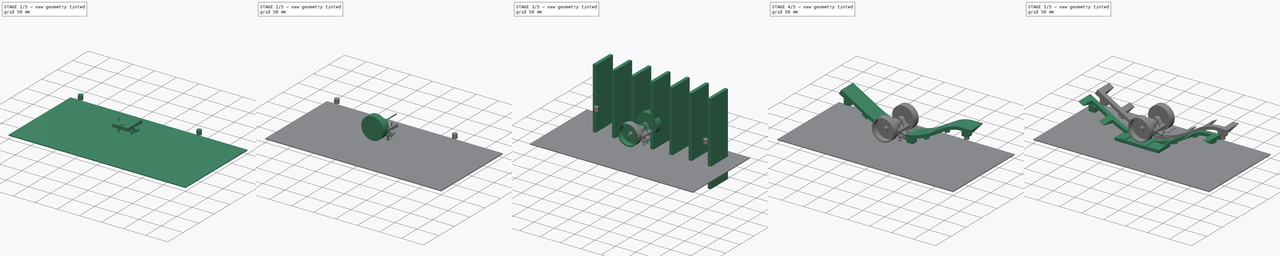
[diagram: build sequence overview — one tinted view per stage of 5, left to right]
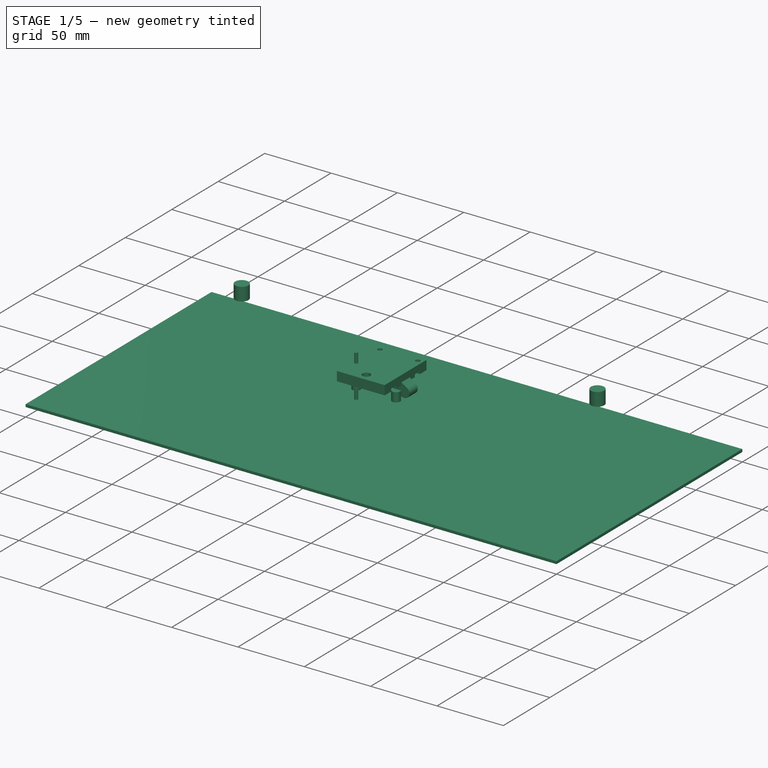
[diagram: stage 1 of 5 — iso view after this stage's code; geometry added in this stage tinted green]
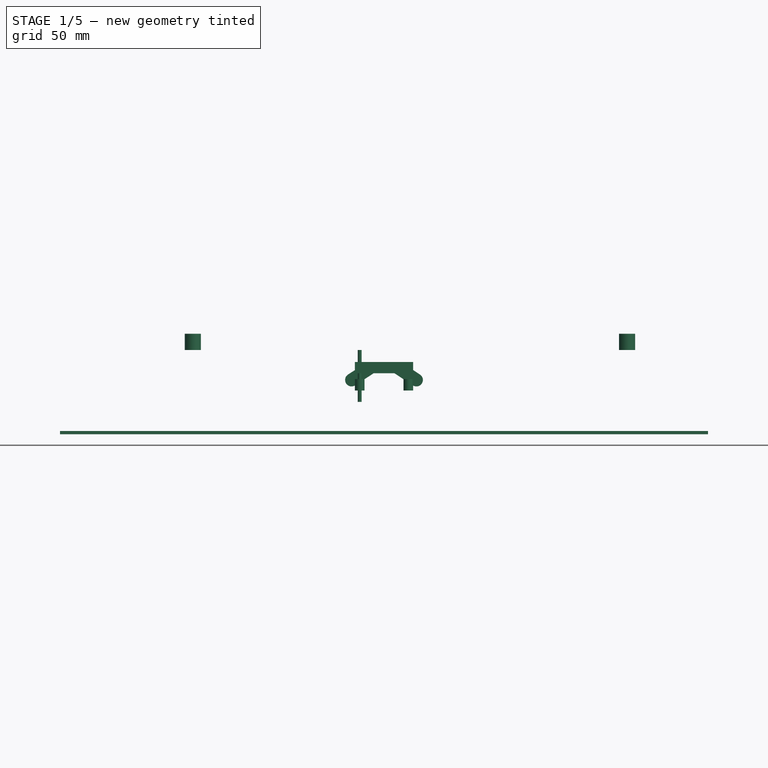
[diagram: stage 1 of 5 — front view after this stage's code; geometry added in this stage tinted green]
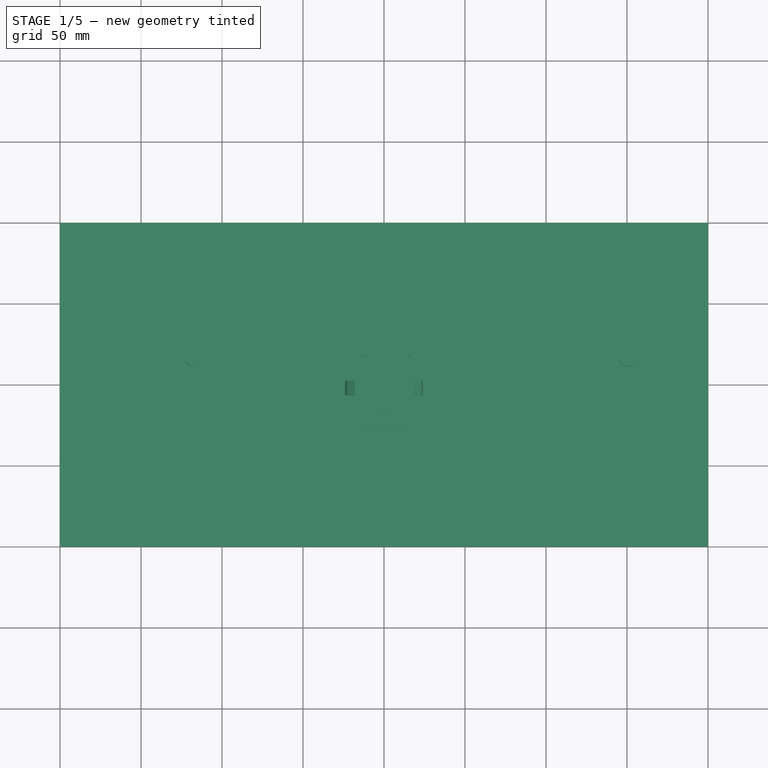
[diagram: stage 1 of 5 — top view after this stage's code; geometry added in this stage tinted green]
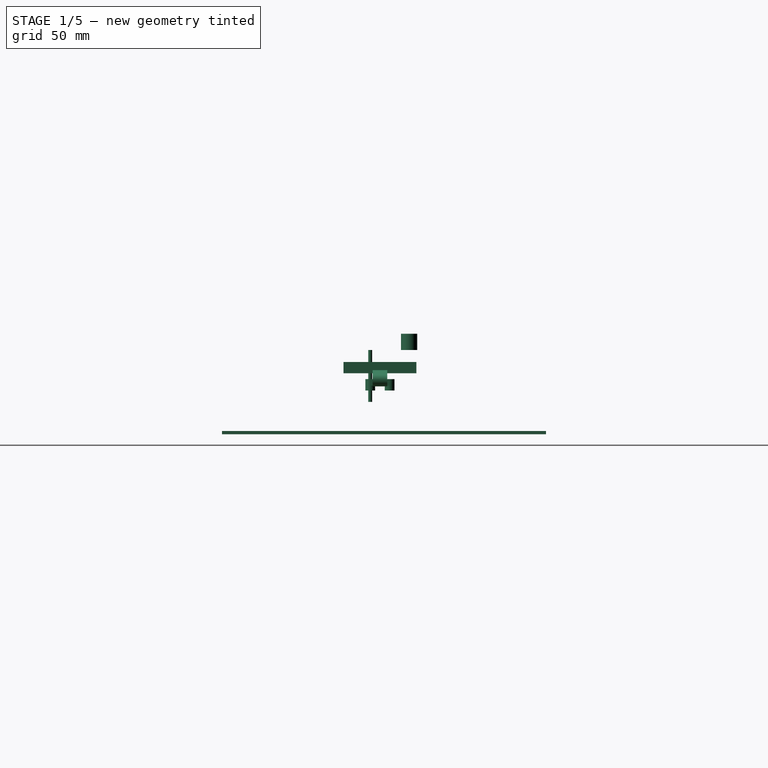
[diagram: stage 1 of 5 — right view after this stage's code; geometry added in this stage tinted green]
FCSTD DOCUMENT  (FreeCAD 0.16R6706 (Git))
Label: mountcar
License: All rights reserved
LicenseURL: http://en.wikipedia.org/wiki/All_rights_reserved
objects: Sketcher::SketchObject×26, Part::FeaturePython×18, Part::Box×15, PartDesign::Pad×13, Part::Cut×12, Part::Cylinder×10, PartDesign::Pocket×7, Part::MultiFuse×5, Part::Compound×3, Part::Sweep×3, Part::Thickness×2, Part::Mirroring×2, Part::Extrusion×1, Part::MultiCommon×1
note: 138 computed .brp shape members not serialized (recipe doc carries the construction recipe); baked Part::Feature solids carry a one-line shape summary decoded from their .brp

FEATURE [Part::Box] Box  label="chassis"
  Height = 5
  Length = 36
  Placement = pos=(-18,-25,-12.4) rot=(0,0,1;0rad)
  Width = 45
FEATURE [Part::Cylinder] Cylinder006  label="rod"
  Angle = 360
  Height = 32
  Radius = 1.2
FEATURE [Part::FeaturePython] Clone014  label="Clone of rod003"  # Draft clone (typed FeaturePython)
  Objects = -> [Cylinder006]
  Placement = pos=(-15,-8.5,-32) rot=(0,0,1;0rad)
  Scale = (1,1,1)
FEATURE [Sketcher::SketchObject] Sketch022
  Placement = pos=(-18,-25,-22) rot=(1,0,0;3.14159rad)
  sketch-geometry (4):
    g0: Circle CenterX=3 CenterY=-16.5 CenterZ=0 NormalX=0 NormalY=0 NormalZ=1 Radius=3
    g1: Circle CenterX=33 CenterY=-28.5 CenterZ=0 NormalX=0 NormalY=0 NormalZ=1 Radius=3
    g2: Circle CenterX=33 CenterY=-16.5 CenterZ=0 NormalX=0 NormalY=0 NormalZ=1 Radius=3
    g3: Circle CenterX=3 CenterY=-28.5 CenterZ=0 NormalX=0 NormalY=0 NormalZ=1 Radius=3
  constraints (12):
    c: DistanceX(g0) = 3
    c: DistanceY(g0) = -16.5
    c: Radius(g0) = 3
    c: DistanceX(g1) = 33
    c: DistanceY(g1) = -28.5
    c: Equal(g0,g3)
    c: Equal(g3,g1)
    c: Equal(g1,g2)
    c: DistanceX(g3) = 3
    c: DistanceY(g3) = -28.5
    c: DistanceX(g2) = 33
    c: DistanceY(g2) = -16.5
FEATURE [PartDesign::Pad] Pad018
  Length = 3
  Length2 = 100
  Placement = pos=(-18,-25,-22) rot=(1,0,0;3.14159rad)
  Sketch = -> Sketch022
  Type = 0
FEATURE [Sketcher::SketchObject] Sketch023
  Placement = pos=(0,2,0) rot=(1,0,0;1.5708rad)
  sketch-geometry (8):
    g0: LineSegment StartX=-18 StartY=-12.4 StartZ=0 EndX=-22.1963 EndY=-15.1569 EndZ=0
    g1: LineSegment StartX=-17.8037 StartY=-21.8431 StartZ=0 EndX=-3.43033 EndY=-12.4 EndZ=0
    g2: LineSegment StartX=-3.43033 StartY=-12.4 StartZ=0 EndX=-18 EndY=-12.4 EndZ=0
    g3: ArcOfCircle CenterX=-20 CenterY=-18.5 CenterZ=0 NormalX=0 NormalY=0 NormalZ=1 Radius=4 StartAngle=2.15206 EndAngle=5.29365
    g4: LineSegment StartX=18 StartY=-12.4 StartZ=0 EndX=22.1963 EndY=-15.1569 EndZ=0
    g5: LineSegment StartX=17.8037 StartY=-21.8431 StartZ=0 EndX=3.43033 EndY=-12.4 EndZ=0
    g6: LineSegment StartX=3.43033 StartY=-12.4 StartZ=0 EndX=18 EndY=-12.4 EndZ=0
    g7: ArcOfCircle CenterX=20 CenterY=-18.5 CenterZ=0 NormalX=0 NormalY=0 NormalZ=1 Radius=4 StartAngle=4.13112 EndAngle=7.27271
  constraints (24):
    c: Coincident(g1,g2)
    c: Horizontal(g2)
    c: DistanceX(g3) = -20
    c: DistanceY(g3) = -18.5
    c: Coincident(g3,g0)
    c: Coincident(g3,g1)
    c: Radius(g3) = 4
    c: Tangent(g0,g3)
    c: Tangent(g1,g3)
    c: DistanceX(g0) = -18
    c: DistanceY(g0) = -12.4
    c: Coincident(g2,g0)
    c: Parallel(g1,g0)
    c: Coincident(g5,g6)
    c: Horizontal(g6)
    c: Coincident(g7,g4)
    c: Coincident(g7,g5)
    c: Radius(g7) = 4
    c: Tangent(g4,g7)
    c: Tangent(g5,g7)
    c: Coincident(g6,g4)
    c: Parallel(g5,g4)
    c: Symmetric(g5,g1,g-2)
    c: Symmetric(g5,g1,g-2)
FEATURE [PartDesign::Pad] Pad019
  Length = 9
  Length2 = 100
  Placement = pos=(0,2,0) rot=(1,0,0;1.5708rad)
  Sketch = -> Sketch023
  Type = 0
FEATURE [Sketcher::SketchObject] Sketch024
  Placement = pos=(-18,-25,-18) rot=(1,0,0;3.14159rad)
  sketch-geometry (8):
    g0: LineSegment StartX=0 StartY=-16.5 StartZ=0 EndX=0 EndY=-28.5 EndZ=0
    g1: LineSegment StartX=6 StartY=-16.5 StartZ=0 EndX=6 EndY=-28.5 EndZ=0
    g2: LineSegment StartX=30 StartY=-16.5 StartZ=0 EndX=30 EndY=-28.5 EndZ=0
    g3: LineSegment StartX=36 StartY=-16.5 StartZ=0 EndX=36 EndY=-28.5 EndZ=0
    g4: ArcOfCircle CenterX=3 CenterY=-16.5 CenterZ=0 NormalX=0 NormalY=0 NormalZ=1 Radius=3 StartAngle=3.868e-09 EndAngle=3.14159
    g5: ArcOfCircle CenterX=3 CenterY=-28.5 CenterZ=0 NormalX=0 NormalY=0 NormalZ=1 Radius=3 StartAngle=3.14159 EndAngle=6.28319
    g6: ArcOfCircle CenterX=33 CenterY=-16.5 CenterZ=0 NormalX=0 NormalY=0 NormalZ=1 Radius=3 StartAngle=6.28319 EndAngle=9.42478
    g7: ArcOfCircle CenterX=33 CenterY=-28.5 CenterZ=0 NormalX=0 NormalY=0 NormalZ=1 Radius=3 StartAngle=3.14159 EndAngle=6.28319
  constraints (28):
    c: Vertical(g0)
    c: Vertical(g1)
    c: Vertical(g2)
    c: Vertical(g3)
    c: Coincident(g4,g0)
    c: Coincident(g4,g1)
    c: Coincident(g5,g0)
    c: Coincident(g5,g1)
    c: Coincident(g6,g2)
    c: Coincident(g6,g3)
    c: Coincident(g7,g2)
    c: Coincident(g7,g3)
    c: DistanceX(g4) = 3
    c: DistanceY(g4) = -16.5
    c: DistanceX(g6) = 33
    c: DistanceY(g6) = -16.5
    c: DistanceX(g7) = 33
    c: DistanceY(g7) = -28.5
    c: DistanceX(g5) = 3
    c: DistanceY(g5) = -28.5
    c: Radius(g4) = 3
    c: Equal(g6,g7)
    c: Equal(g7,g5)
    c: Equal(g5,g4)
    c: Tangent(g1,g4)
    c: Tangent(g2,g6)
    c: Tangent(g0,g4)
    c: Tangent(g3,g7)
FEATURE [PartDesign::Pad] Pad020
  Length = 4
  Length2 = 100
  Placement = pos=(-18,-25,-18) rot=(1,0,0;3.14159rad)
  Sketch = -> Sketch024
  Type = 0
FEATURE [Part::Box] Box002  label="chassis001"
  Height = 2
  Length = 36
  Placement = pos=(-18,-12.5,-14.4) rot=(0,0,1;0rad)
  Width = 20
FEATURE [Part::Box] Box003  label="chassis002"
  Height = 2
  Length = 18
  Placement = pos=(-9,-25,-14.4) rot=(0,0,1;0rad)
  Width = 45
FEATURE [Part::Box] Box004  label="chassis003"
  Height = 2
  Length = 36
  Placement = pos=(-18,13,-14.4) rot=(0,0,1;0rad)
  Width = 7
FEATURE [Part::Box] Box005  label="chassis004"
  Height = 2
  Length = 36
  Placement = pos=(-18,-25,-14.4) rot=(0,0,1;0rad)
  Width = 7
FEATURE [Sketcher::SketchObject] Sketch025
  Placement = pos=(0,0,-50) rot=(0,0,1;0rad)
  sketch-geometry (3):
    g0: Circle CenterX=0 CenterY=-19 CenterZ=0 NormalX=0 NormalY=0 NormalZ=1 Radius=1.7
    g1: Circle CenterX=-14.3 CenterY=16 CenterZ=0 NormalX=0 NormalY=0 NormalZ=1 Radius=1.7
    g2: Circle CenterX=14.3 CenterY=16 CenterZ=0 NormalX=0 NormalY=0 NormalZ=1 Radius=1.7
  constraints (8):
    c: PointOnObject(g0,g-2)
    c: Radius(g0) = 1.7
    c: DistanceX(g1) = -14.3
    c: Symmetric(g1,g2,g-2)
    c: Equal(g1,g2)
    c: Equal(g2,g0)
    c: DistanceY(g1) = 16
    c: DistanceY(g0) = -19
FEATURE [Part::MultiFuse] Fusion002
  Shapes = -> [Box002,Box004,Box003,Box005]
FEATURE [PartDesign::Pad] Pad021
  Length = 100
  Length2 = 100
  Placement = pos=(0,0,-50) rot=(0,0,1;0rad)
  Sketch = -> Sketch025
  Type = 0
FEATURE [Part::Cut] Cut005
  Base = -> Fusion002
  Tool = -> Pad021
FEATURE [Part::Cut] Cut006
  Base = -> Box
  Tool = -> Pad021
FEATURE [Sketcher::SketchObject] Sketch026
  Placement = pos=(0,0,-7.4) rot=(0,0,1;0rad)
  Support = -> Cut006 [Face3]
  sketch-geometry (1):
    g0: Circle CenterX=0 CenterY=-19 CenterZ=0 NormalX=0 NormalY=0 NormalZ=1 Radius=3
  constraints (3):
    c: PointOnObject(g0,g-2)
    c: Radius(g0) = 3
    c: DistanceY(g0) = -19
FEATURE [PartDesign::Pocket] Pocket002
  Length = 3
  Sketch = -> Sketch026
  Type = 0
FEATURE [Part::Cylinder] Cylinder008  label="Cylinder"
  Angle = 360
  Height = 10
  Placement = pos=(150.032,15.5155,0) rot=(0,0,1;0rad)
  Radius = 5
FEATURE [Part::Cylinder] Cylinder009  label="Cylinder001"
  Angle = 360
  Height = 10
  Placement = pos=(-118.004,15.4796,0) rot=(0,0,1;0rad)
  Radius = 5
FEATURE [Part::Box] Box015  label="Cube"
  Height = 2
  Length = 400
  Placement = pos=(-200,-100,-52) rot=(0,0,1;0rad)
  Width = 200
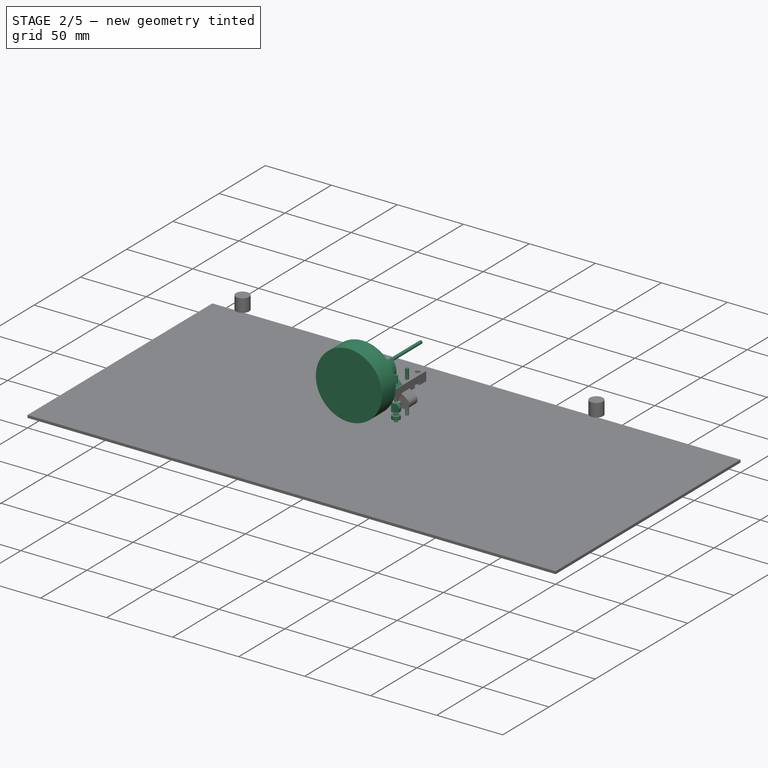
[diagram: stage 2 of 5 — iso view after this stage's code; geometry added in this stage tinted green]
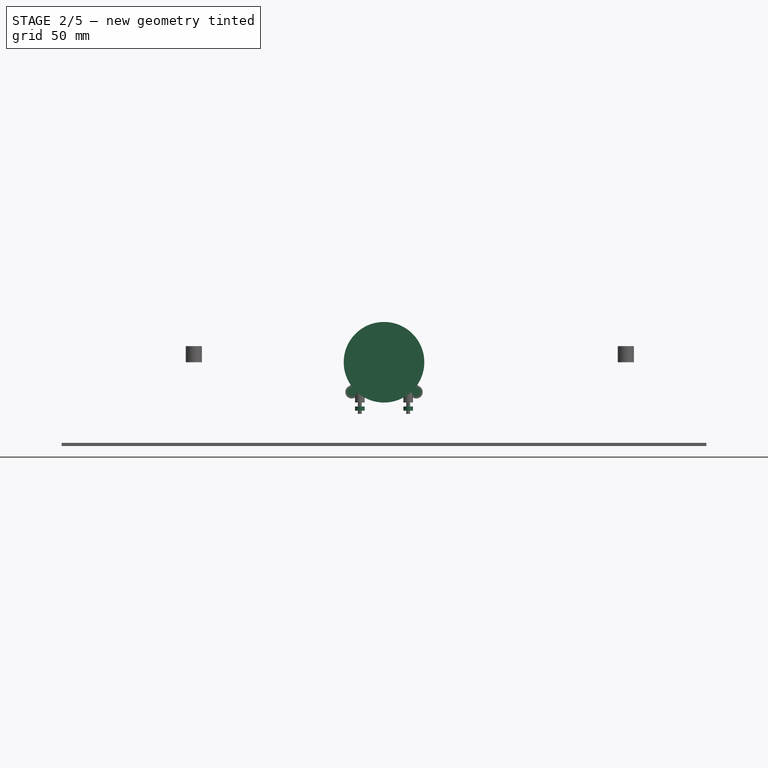
[diagram: stage 2 of 5 — front view after this stage's code; geometry added in this stage tinted green]
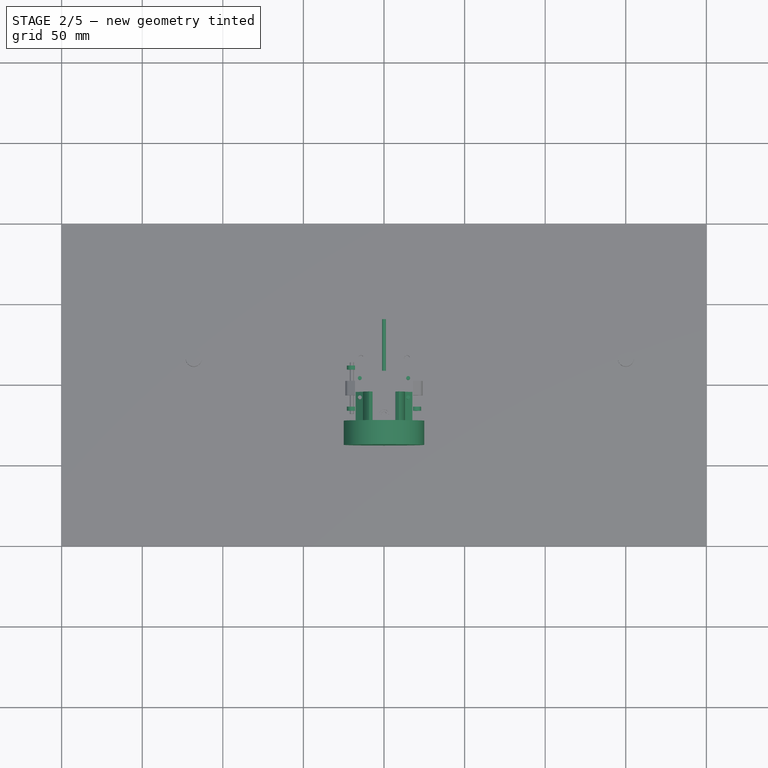
[diagram: stage 2 of 5 — top view after this stage's code; geometry added in this stage tinted green]
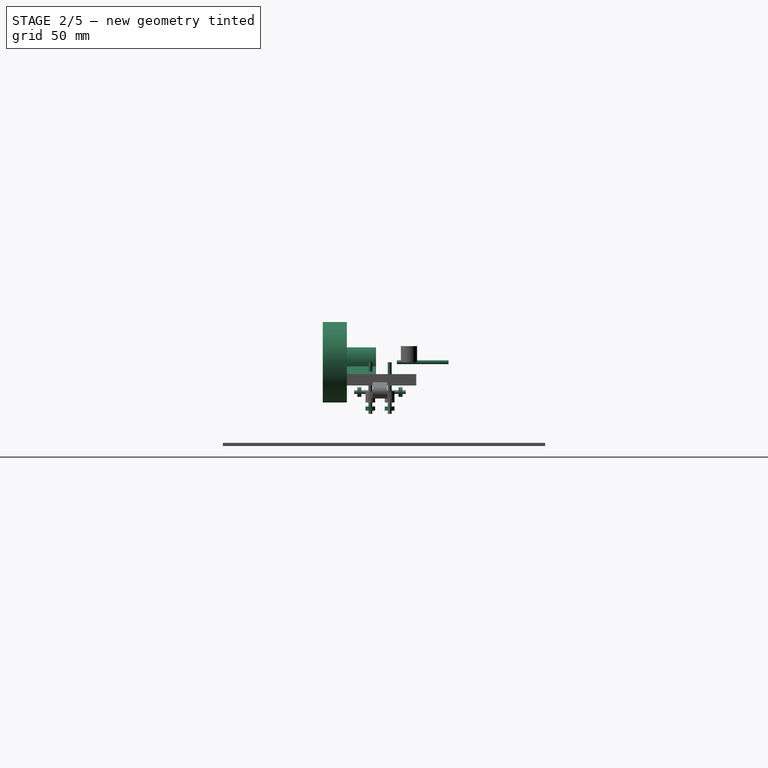
[diagram: stage 2 of 5 — right view after this stage's code; geometry added in this stage tinted green]
FEATURE [Sketcher::SketchObject] Sketch010  label="motorholder_sk"
  Placement = pos=(0,-5,0) rot=(1,0,0;1.5708rad)
  sketch-geometry (16):
    g0: ArcOfCircle CenterX=0 CenterY=0 CenterZ=0 NormalX=0 NormalY=0 NormalZ=1 Radius=10.05 StartAngle=2.29165 EndAngle=3.99154
    g1: ArcOfCircle CenterX=0 CenterY=0 CenterZ=0 NormalX=0 NormalY=0 NormalZ=1 Radius=10.05 StartAngle=5.43324 EndAngle=7.13313
    g2: GeomPoint [constr] X=-10.05 Y=0 Z=0
    g3: GeomPoint [constr] X=10.05 Y=0 Z=0
    g4: LineSegment StartX=-6.63325 StartY=7.55 StartZ=0 EndX=-2.63325 EndY=7.55 EndZ=0
    g5: LineSegment StartX=-2.63325 StartY=7.55 StartZ=0 EndX=-2.63325 EndY=11.1803 EndZ=0
    g6: LineSegment StartX=-2.63325 StartY=11.1803 StartZ=0 EndX=-6.63325 EndY=11.1803 EndZ=0
    g7: ArcOfCircle CenterX=0 CenterY=0 CenterZ=0 NormalX=0 NormalY=0 NormalZ=1 Radius=13 StartAngle=2.10627 EndAngle=3.33903
    g8: LineSegment StartX=6.63325 StartY=7.55 StartZ=0 EndX=2.63325 EndY=7.55 EndZ=0
    g9: LineSegment StartX=2.63325 StartY=7.55 StartZ=0 EndX=2.63325 EndY=11.1803 EndZ=0
    g10: LineSegment StartX=2.63325 StartY=11.1803 StartZ=0 EndX=6.63325 EndY=11.1803 EndZ=0
    g11: ArcOfCircle CenterX=0 CenterY=0 CenterZ=0 NormalX=0 NormalY=0 NormalZ=1 Radius=13 StartAngle=6.08575 EndAngle=7.31851
    g12: LineSegment StartX=-6.63325 StartY=-7.55 StartZ=0 EndX=-17.7475 EndY=-7.55 EndZ=0
    g13: LineSegment StartX=6.63325 StartY=-7.55 StartZ=0 EndX=17.7475 EndY=-7.55 EndZ=0
    g14: LineSegment StartX=-17.7475 StartY=-7.55 StartZ=0 EndX=-12.7475 EndY=-2.55 EndZ=0
    g15: LineSegment StartX=12.7475 StartY=-2.55 StartZ=0 EndX=17.7475 EndY=-7.55 EndZ=0
  constraints (43):
    c: Symmetric(g1,g0,g-1)
    c: Symmetric(g0,g1,g-1)
    c: Symmetric(g1,g1,g-1)
    c: Equal(g0,g1)
    c: DistanceY(g0,g0) = 15.1
    c: PointOnObject(g2,g0)
    c: PointOnObject(g3,g1)
    c: DistanceY(g2) = 0
    c: DistanceY(g3) = 0
    c: DistanceX(g2,g3) = 20.1
    c: Radius(g1) = 10.05
    c: Coincident(g0,g4)
    c: Coincident(g4,g5)
    c: Coincident(g5,g6)
    c: Horizontal(g4)
    c: Vertical(g5)
    c: Horizontal(g6)
    c: Coincident(g7,g6)
    c: Coincident(g7,g-1)
    c: Radius(g7) = 13
    c: DistanceX(g4,g4) = 4
    c: DistanceX(g6,g0) = 0
    c: Coincident(g8,g9)
    c: Coincident(g9,g10)
    c: Symmetric(g8,g4,g-2)
    c: Symmetric(g9,g5,g-2)
    c: Symmetric(g10,g6,g-2)
    c: Symmetric(g8,g0,g-2)
    c: Coincident(g11,g10)
    c: Equal(g7,g11)
    c: Coincident(g0,g12)
    c: Horizontal(g12)
    c: Coincident(g13,g1)
    c: Horizontal(g13)
    c: DistanceY(g11) = 0
    c: Coincident(g14,g12)
    c: Coincident(g14,g7)
    c: Coincident(g15,g11)
    c: Coincident(g15,g13)
    c: Angle(g15,g13) = 0.785398
    c: Angle(g12,g14) = 0.785398
    c: DistanceY(g12,g7) = 5
    c: DistanceY(g13,g11) = 5
FEATURE [PartDesign::Pad] Pad008  label="motorholder"
  Length = 20
  Length2 = 100
  Placement = pos=(0,-5,0) rot=(1,0,0;1.5708rad)
  Sketch = -> Sketch010
  Type = 0
FEATURE [Part::Cylinder] Cylinder003  label="wheel_b"
  Angle = 360
  Height = 15
  Placement = pos=(0,-23,0) rot=(1,0,0;1.5708rad)
  Radius = 25
FEATURE [Part::Cylinder] Cylinder004  label="shaft_holder_b"
  Angle = 360
  Height = 15
  Placement = pos=(0,-23,0) rot=(1,0,0;1.5708rad)
  Radius = 4
FEATURE [Part::Cylinder] Cylinder005  label="wheelshaft"
  Angle = 360
  Height = 32
  Placement = pos=(0,40,0) rot=(1,0,0;1.5708rad)
  Radius = 1.2
FEATURE [Sketcher::SketchObject] Sketch017  label="motorholder_pocket_sk"
  Placement = pos=(0,-5,0) rot=(1,0,0;1.5708rad)
  sketch-geometry (3):
    g0: LineSegment StartX=0 StartY=0 StartZ=0 EndX=-12 EndY=12 EndZ=0
    g1: LineSegment StartX=-12 StartY=12 StartZ=0 EndX=12 EndY=12 EndZ=0
    g2: LineSegment StartX=12 StartY=12 StartZ=0 EndX=0 EndY=0 EndZ=0
  constraints (8):
    c: Coincident(g-1,g0)
    c: Coincident(g0,g1)
    c: Horizontal(g1)
    c: Coincident(g1,g2)
    c: Coincident(g2,g0)
    c: Symmetric(g1,g0,g-2)
    c: Angle(g1,g2) = 0.785398
    c: DistanceY(g1) = 12
FEATURE [PartDesign::Pad] Pad013  label="motorholder_pocket"
  Length = 20
  Length2 = 100
  Placement = pos=(0,-5,0) rot=(1,0,0;1.5708rad)
  Sketch = -> Sketch017
  Type = 0
FEATURE [Part::Cut] Cut004  label="motor_holder_cut"
  Base = -> Pad008
  Tool = -> Pad013
FEATURE [Part::FeaturePython] Clone002  label="axle_h_r"  # Draft clone (typed FeaturePython)
  Objects = -> [Cylinder006]
  Placement = pos=(20,13.5,-18.5) rot=(1,0,0;1.5708rad)
  Scale = (1,1,1)
FEATURE [Sketcher::SketchObject] Sketch020  label="axle_back_wheel_h_br_sk001"
  Placement = pos=(20,9,-18.5) rot=(-1,0,0;1.5708rad)
  sketch-geometry (1):
    g0: Circle CenterX=0 CenterY=0 CenterZ=0 NormalX=0 NormalY=0 NormalZ=1 Radius=3
  constraints (2):
    c: Coincident(g-1,g0)
    c: Radius(g0) = 3
FEATURE [PartDesign::Pad] Pad016  label="wheel_br"
  Length = 2.5
  Length2 = 100
  Placement = pos=(20,9,-18.5) rot=(-1,0,0;1.5708rad)
  Sketch = -> Sketch020
  Type = 0
FEATURE [Part::FeaturePython] Clone004  label="wheel_fr"  # Draft clone (typed FeaturePython)
  Objects = -> [Pad016]
  Placement = pos=(20,-16.5,-18.5) rot=(-1,0,0;1.5708rad)
  Scale = (1,1,1)
FEATURE [Part::FeaturePython] Clone005  label="wheel_fl"  # Draft clone (typed FeaturePython)
  Objects = -> [Pad016]
  Placement = pos=(-20,-16.5,-18.5) rot=(-1,0,0;1.5708rad)
  Scale = (1,1,1)
FEATURE [Part::FeaturePython] Clone006  label="wheel_bl"  # Draft clone (typed FeaturePython)
  Objects = -> [Pad016]
  Placement = pos=(-20,9,-18.5) rot=(-1,0,0;1.5708rad)
  Scale = (1,1,1)
FEATURE [Part::FeaturePython] Clone007  label="axle_h_l"  # Draft clone (typed FeaturePython)
  Objects = -> [Clone002]
  Placement = pos=(-20,13.5,-18.5) rot=(1,0,0;1.5708rad)
  Scale = (1,1,1)
FEATURE [Part::Cylinder] Cylinder007  label="ballbearing"
  Angle = 360
  Height = 2.5
  Placement = pos=(15,3.5,-30) rot=(0,0,1;0rad)
  Radius = 3
FEATURE [Part::FeaturePython] Clone008  label="Clone of ballbearing"  # Draft clone (typed FeaturePython)
  Objects = -> [Cylinder007]
  Placement = pos=(-15,3.5,-30) rot=(0,0,1;0rad)
  Scale = (1,1,1)
FEATURE [Part::FeaturePython] Clone009  label="Clone of ballbearing001"  # Draft clone (typed FeaturePython)
  Objects = -> [Cylinder007]
  Placement = pos=(15,-8.5,-30) rot=(0,0,1;0rad)
  Scale = (1,1,1)
FEATURE [Part::FeaturePython] Clone010  label="Clone of ballbearing002"  # Draft clone (typed FeaturePython)
  Objects = -> [Cylinder007]
  Placement = pos=(-15,-8.5,-30) rot=(0,0,1;0rad)
  Scale = (1,1,1)
FEATURE [Part::FeaturePython] Clone011  label="Clone of rod"  # Draft clone (typed FeaturePython)
  Objects = -> [Cylinder006]
  Placement = pos=(15,3.5,-32) rot=(0,0,1;0rad)
  Scale = (1,1,1)
FEATURE [Part::FeaturePython] Clone012  label="Clone of rod001"  # Draft clone (typed FeaturePython)
  Objects = -> [Cylinder006]
  Placement = pos=(-15,3.5,-32) rot=(0,0,1;0rad)
  Scale = (1,1,1)
FEATURE [Part::FeaturePython] Clone013  label="Clone of rod002"  # Draft clone (typed FeaturePython)
  Objects = -> [Cylinder006]
  Placement = pos=(15,-8.5,-32) rot=(0,0,1;0rad)
  Scale = (1,1,1)
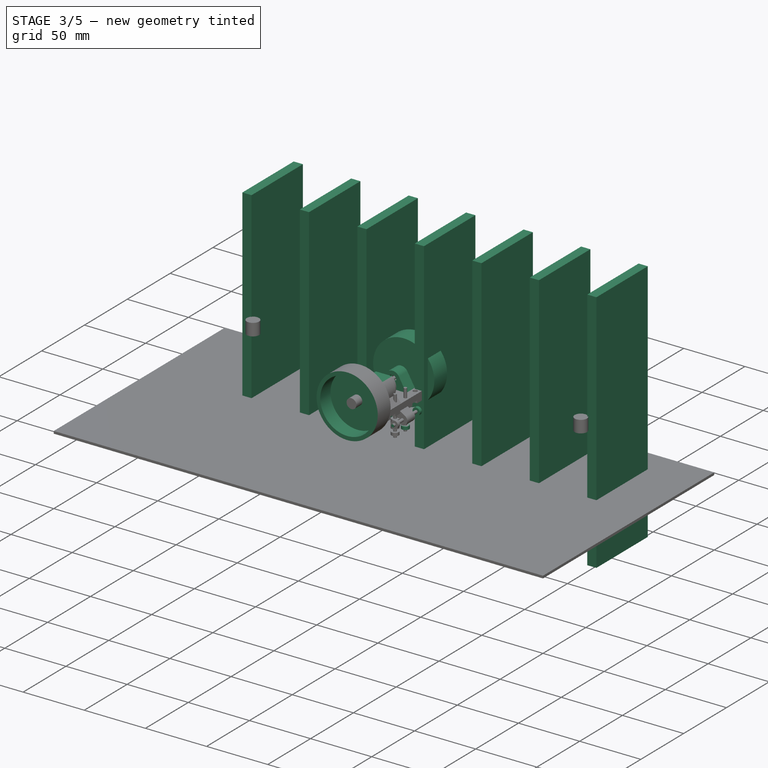
[diagram: stage 3 of 5 — iso view after this stage's code; geometry added in this stage tinted green]
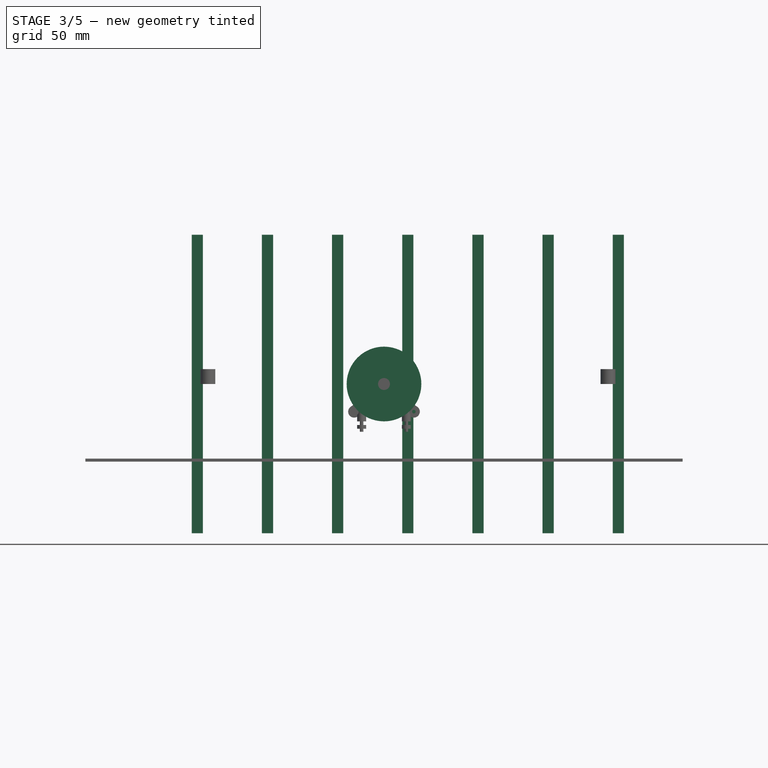
[diagram: stage 3 of 5 — front view after this stage's code; geometry added in this stage tinted green]
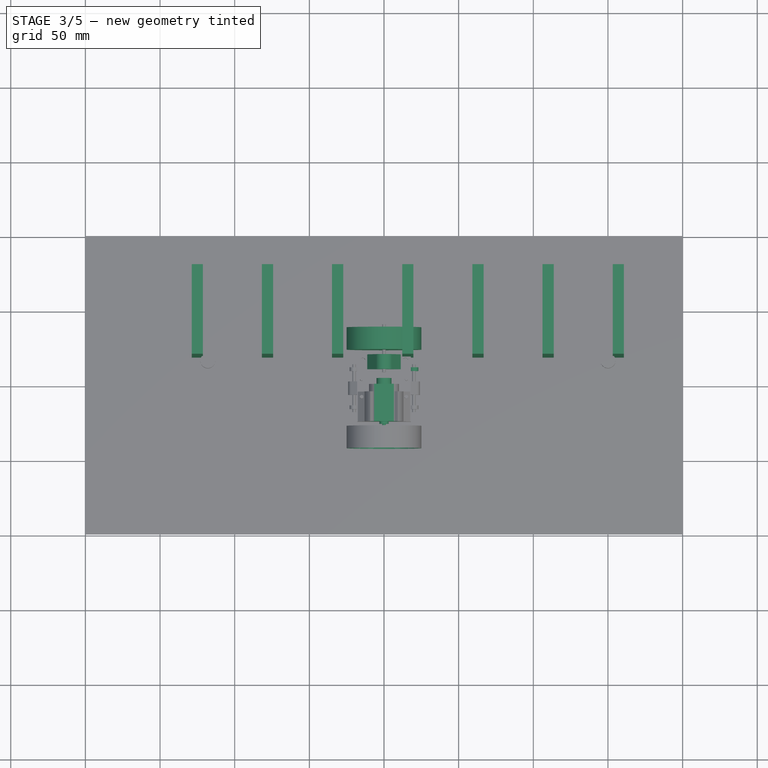
[diagram: stage 3 of 5 — top view after this stage's code; geometry added in this stage tinted green]
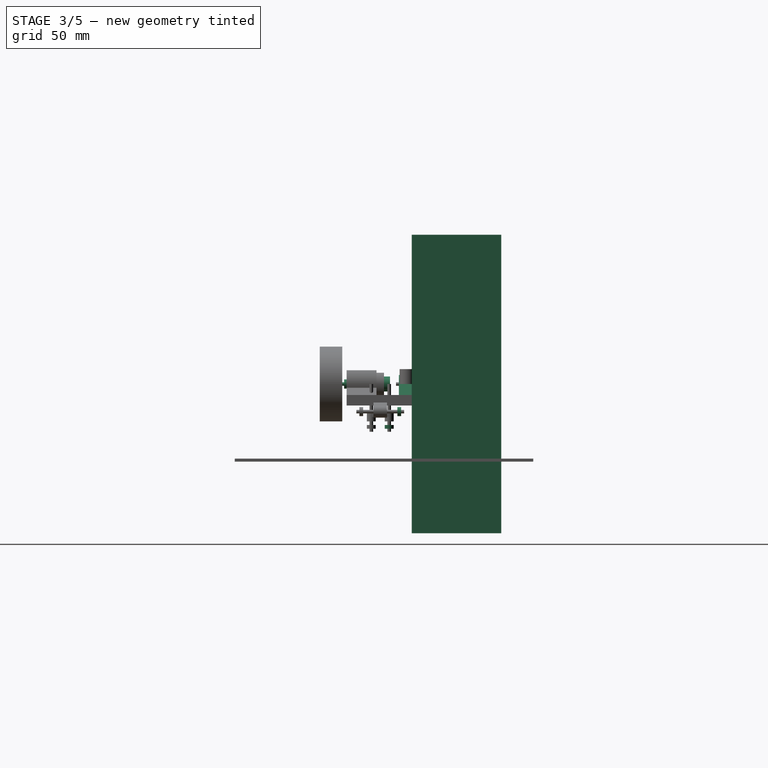
[diagram: stage 3 of 5 — right view after this stage's code; geometry added in this stage tinted green]
FEATURE [Sketcher::SketchObject] Sketch  label="motorsketch"
  Placement = pos=(0,0,0) rot=(1,0,0;1.5708rad)
  sketch-geometry (6):
    g0: LineSegment StartX=-6.63325 StartY=7.55 StartZ=0 EndX=6.63325 EndY=7.55 EndZ=0
    g1: LineSegment StartX=6.63325 StartY=-7.55 StartZ=0 EndX=-6.63325 EndY=-7.55 EndZ=0
    g2: ArcOfCircle CenterX=0 CenterY=0 CenterZ=0 NormalX=0 NormalY=0 NormalZ=1 Radius=10.05 StartAngle=2.29165 EndAngle=3.99154
    g3: ArcOfCircle CenterX=0 CenterY=0 CenterZ=0 NormalX=0 NormalY=0 NormalZ=1 Radius=10.05 StartAngle=5.43324 EndAngle=7.13313
    g4: GeomPoint [constr] X=-10.05 Y=0 Z=0
    g5: GeomPoint [constr] X=10.05 Y=0 Z=0
  constraints (17):
    c: Horizontal(g0)
    c: Horizontal(g1)
    c: Coincident(g3,g0)
    c: Coincident(g0,g2)
    c: Coincident(g1,g2)
    c: Coincident(g1,g3)
    c: Symmetric(g0,g1,g-1)
    c: Symmetric(g0,g1,g-1)
    c: Symmetric(g1,g0,g-1)
    c: Equal(g2,g3)
    c: DistanceY(g1,g0) = 15.1
    c: PointOnObject(g4,g2)
    c: PointOnObject(g5,g3)
    c: DistanceY(g4) = 0
    c: DistanceY(g5) = 0
    c: DistanceX(g4,g5) = 20.1
    c: Radius(g3) = 10.05
FEATURE [PartDesign::Pad] Pad  label="motor"
  Length = 25
  Length2 = 100
  Placement = pos=(0,0,0) rot=(1,0,0;1.5708rad)
  Sketch = -> Sketch
  Type = 0
FEATURE [Sketcher::SketchObject] Sketch001  label="shaftpadsketch"
  Placement = pos=(0,-25,0) rot=(1,0,0;1.5708rad)
  Support = -> Pad [Face6]
  sketch-geometry (1):
    g0: Circle CenterX=0 CenterY=0 CenterZ=0 NormalX=0 NormalY=0 NormalZ=1 Radius=3.075
  constraints (2):
    c: Coincident(g0,g-1)
    c: Radius(g0) = 3.075
FEATURE [PartDesign::Pad] Pad001  label="shaftpad"
  Length = 1.7
  Length2 = 100
  Placement = pos=(0,0,0) rot=(1,0,0;1.5708rad)
  Sketch = -> Sketch001
  Type = 0
FEATURE [Part::Cylinder] Cylinder  label="motorshaft"
  Angle = 360
  Height = 7.7
  Placement = pos=(0,-26.7,0) rot=(1,0,0;1.5708rad)
  Radius = 1.2
FEATURE [Part::Cylinder] Cylinder001  label="wheel_f"
  Angle = 360
  Height = 15
  Placement = pos=(0,-28,0) rot=(1,0,0;1.5708rad)
  Radius = 25
FEATURE [Part::Thickness] Thickness  label="wheel_hollow_f"
  Faces = -> Cylinder001 [Face2]
  Intersection = false
  Join = 0
  Mode = 0
  SelfIntersection = false
  Value = -3
FEATURE [Part::Cylinder] Cylinder002  label="shaft_holder_f"
  Angle = 360
  Height = 10
  Placement = pos=(0,-28,0) rot=(1,0,0;1.5708rad)
  Radius = 4
FEATURE [Part::MultiFuse] Fusion  label="wheel_shaft_holder_f"
  Shapes = -> [Thickness,Cylinder002]
FEATURE [Part::Thickness] Thickness001  label="wheel_hollow_b"
  Faces = -> Cylinder003 [Face2]
  Intersection = false
  Join = 0
  Mode = 0
  SelfIntersection = false
  Value = -3
FEATURE [Part::MultiFuse] Fusion001  label="wheel_shaft_holder_b"
  Placement = pos=(0,0,0) rot=(0,0,1;3.14159rad)
  Shapes = -> [Thickness001,Cylinder004]
  expr: Placement.Rotation.Angle = 180
FEATURE [Sketcher::SketchObject] Sketch011  label="motorback_sk"
  Placement = pos=(0,0,0) rot=(-1,0,0;1.5708rad)
  Support = -> Pad001 [Face4]
  sketch-geometry (1):
    g0: Circle CenterX=0 CenterY=0 CenterZ=0 NormalX=0 NormalY=0 NormalZ=1 Radius=5
  constraints (2):
    c: Coincident(g0,g-1)
    c: Radius(g0) = 5
FEATURE [PartDesign::Pad] Pad009  label="motorback"
  Length = 4
  Length2 = 100
  Placement = pos=(0,0,0) rot=(1,0,0;1.5708rad)
  Sketch = -> Sketch011
  Type = 0
FEATURE [Sketcher::SketchObject] Sketch012  label="bearing_sk"
  Placement = pos=(0,20,0) rot=(1,0,0;1.5708rad)
  sketch-geometry (5):
    g0: LineSegment StartX=-11.2872 StartY=-7.55 StartZ=0 EndX=-5.19616 EndY=2.99998 EndZ=0
    g1: LineSegment StartX=5.19616 StartY=2.99998 StartZ=0 EndX=11.2872 EndY=-7.55 EndZ=0
    g2: LineSegment StartX=11.2872 StartY=-7.55 StartZ=0 EndX=-11.2872 EndY=-7.55 EndZ=0
    g3: Circle CenterX=0 CenterY=0 CenterZ=0 NormalX=0 NormalY=0 NormalZ=1 Radius=2
    g4: ArcOfCircle CenterX=0 CenterY=0 CenterZ=0 NormalX=0 NormalY=0 NormalZ=1 Radius=6 StartAngle=0.523595 EndAngle=2.618
  constraints (14):
    c: Coincident(g1,g2)
    c: Coincident(g2,g0)
    c: Horizontal(g2)
    c: DistanceY(g0,g-1) = 7.55
    c: Coincident(g3,g-1)
    c: Radius(g3) = 2
    c: Coincident(g4,g-1)
    c: Coincident(g4,g0)
    c: Coincident(g4,g1)
    c: Tangent(g1,g4)
    c: Tangent(g0,g4)
    c: Angle(g2,g0) = 1.0472
    c: Equal(g0,g1)
    c: Radius(g4) = 6
FEATURE [PartDesign::Pad] Pad010  label="bearing"
  Length = 10
  Length2 = 100
  Placement = pos=(0,20,0) rot=(1,0,0;1.5708rad)
  Sketch = -> Sketch012
  Type = 0
FEATURE [Sketcher::SketchObject] Sketch013  label="bearnig_hole_f_sk"
  Placement = pos=(0,10,0) rot=(1,0,0;1.5708rad)
  Support = -> Pad010 [Face7]
  sketch-geometry (1):
    g0: Circle CenterX=0 CenterY=0 CenterZ=0 NormalX=0 NormalY=0 NormalZ=1 Radius=3
  constraints (2):
    c: Coincident(g0,g-1)
    c: Radius(g0) = 3
FEATURE [PartDesign::Pocket] Pocket  label="bearnig_hole_f"
  Length = 2.5
  Placement = pos=(0,20,0) rot=(1,0,0;1.5708rad)
  Sketch = -> Sketch013
  Type = 0
FEATURE [Sketcher::SketchObject] Sketch014  label="bearnig_hole_b_sk"
  Placement = pos=(0,20,0) rot=(-1,0,0;1.5708rad)
  Support = -> Pocket [Face4]
  sketch-geometry (1):
    g0: Circle CenterX=0 CenterY=0 CenterZ=0 NormalX=0 NormalY=0 NormalZ=1 Radius=3
  constraints (2):
    c: Coincident(g0,g-1)
    c: Radius(g0) = 3
FEATURE [PartDesign::Pocket] Pocket001  label="bearing_hole_b"
  Length = 2.5
  Placement = pos=(0,20,0) rot=(1,0,0;1.5708rad)
  Sketch = -> Sketch014
  Type = 0
FEATURE [Part::Cut] Cut  label="wheel_shaft_hollow_f"
  Base = -> Fusion
  Tool = -> Cylinder
FEATURE [Part::Cut] Cut001  label="wheel_shaft_hollow_b"
  Base = -> Fusion001
  Tool = -> Cylinder005
FEATURE [Part::Box] Box014  label="rail_cut_cube_b001"
  Height = 200
  Length = 7.5
  Placement = pos=(-128.8,18.55,-100) rot=(0,0,1;0rad)
  Width = 60
FEATURE [Part::FeaturePython] Array002  # Draft array (typed FeaturePython)
  Angle = 360
  ArrayType = 0
  Axis = (0,0,1)
  Base = -> Box014
  Center = (0,0,0)
  Fuse = false
  IntervalAxis = (0,0,0)
  IntervalX = (47,0,0)
  IntervalY = (0,1,0)
  IntervalZ = (0,0,0)
  NumberPolar = 1
  NumberX = 7
  NumberY = 1
  NumberZ = 1
FEATURE [Part::Compound] Compound  label="car"
  Links = -> [Pocket001,Cut,Cylinder,Pad018,Pad019,Pad009,Cut001,Cylinder005,Cut004,Pad016,Clone002,Clone004,Clone005,Clone006,Clone007,Cylinder007,Clone008,Clone009,Clone011,Clone010,Clone012,Clone013,Clone014,Pad020,Pocket002,Cut005]
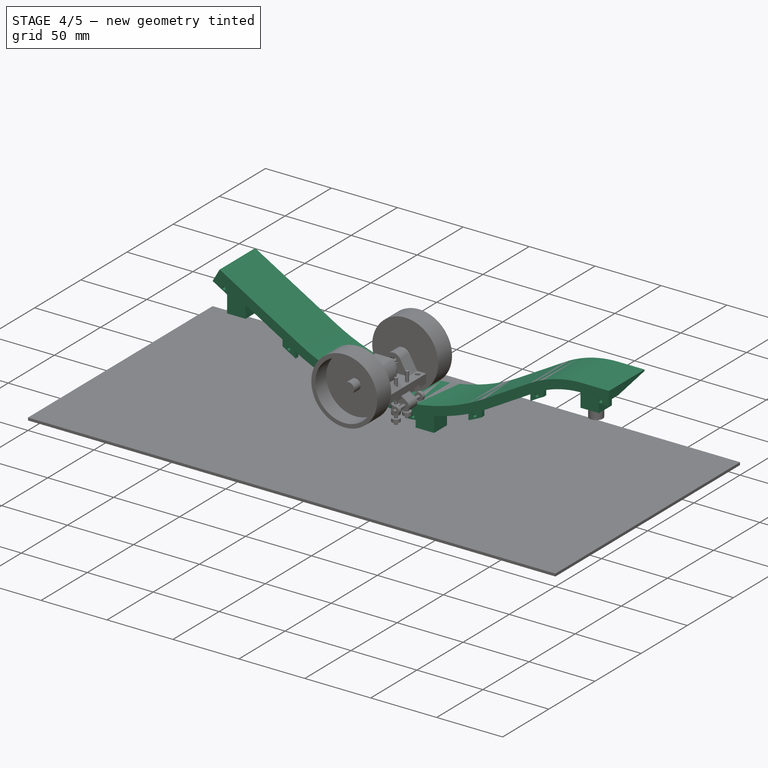
[diagram: stage 4 of 5 — iso view after this stage's code; geometry added in this stage tinted green]
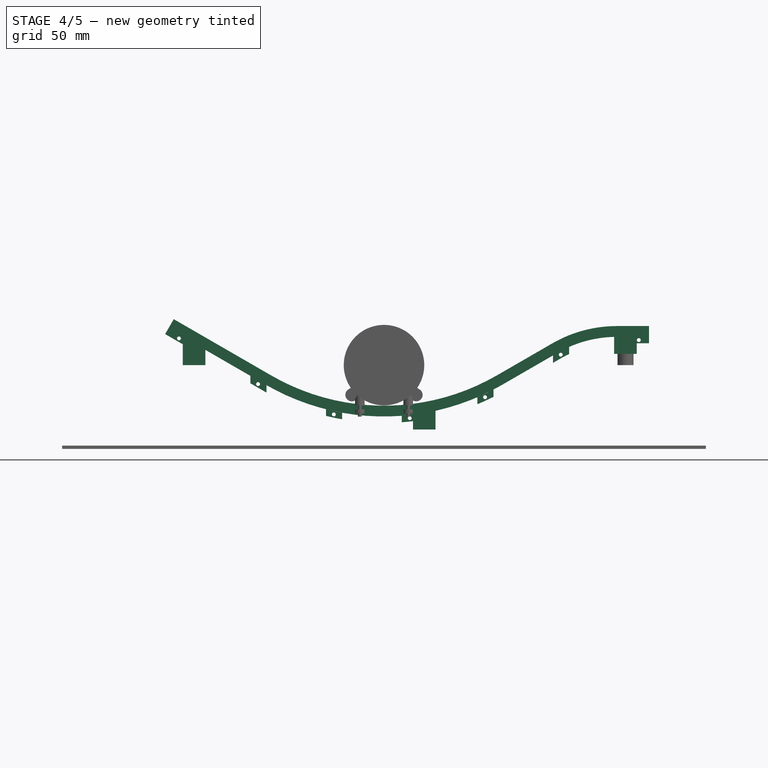
[diagram: stage 4 of 5 — front view after this stage's code; geometry added in this stage tinted green]
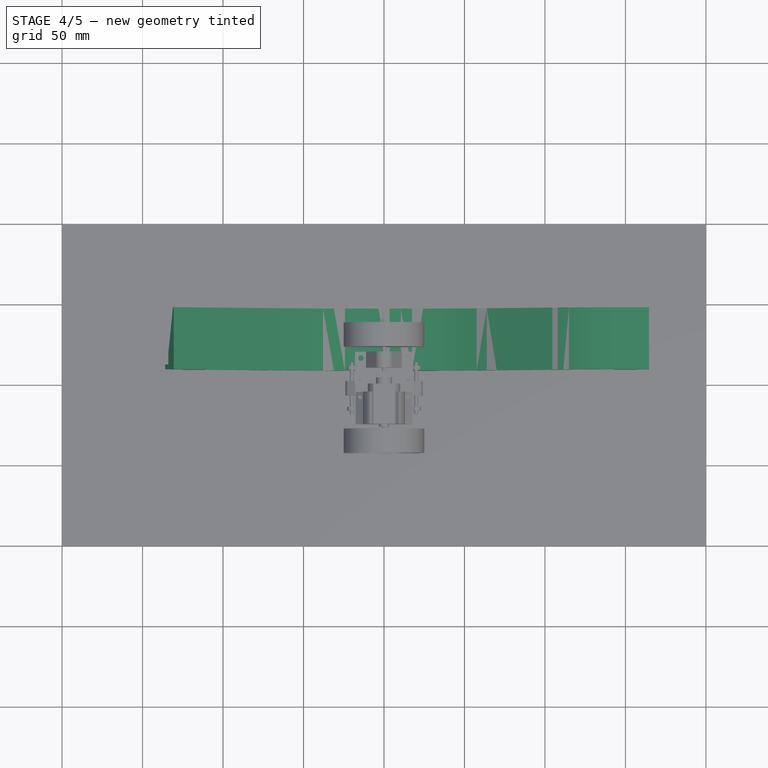
[diagram: stage 4 of 5 — top view after this stage's code; geometry added in this stage tinted green]
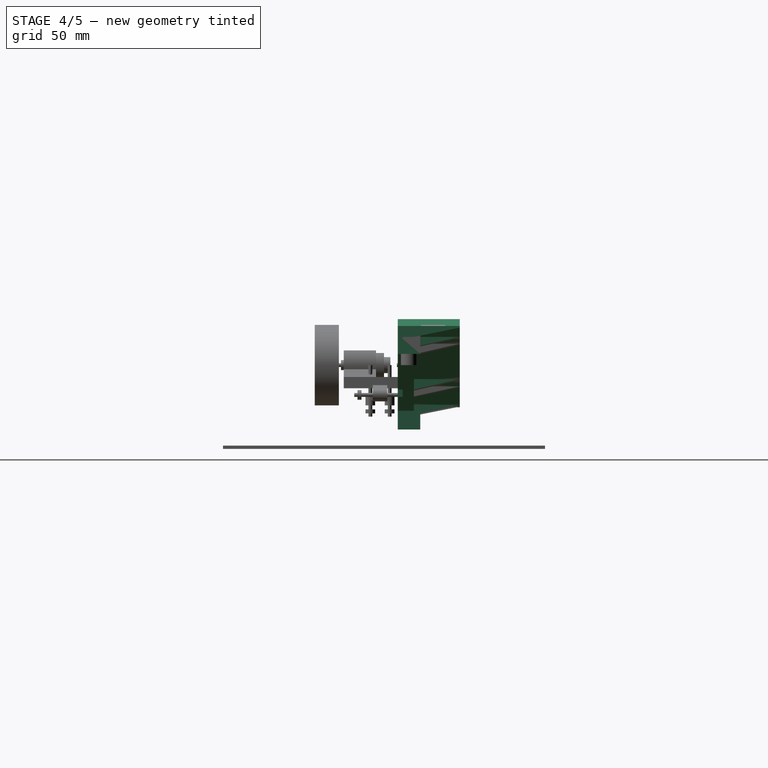
[diagram: stage 4 of 5 — right view after this stage's code; geometry added in this stage tinted green]
FEATURE [Sketcher::SketchObject] Sketch029  label="rail_b_sk"
  Placement = pos=(0,0,0) rot=(0.57735,0.57735,0.57735;2.0944rad)
  sketch-geometry (6):
    g0: LineSegment StartX=-19.25 StartY=-25.2 StartZ=0 EndX=-19.25 EndY=-31.9 EndZ=0
    g1: LineSegment StartX=-19.25 StartY=-31.9 StartZ=0 EndX=-9.25 EndY=-31.9 EndZ=0
    g2: LineSegment StartX=-9.25 StartY=-31.9 StartZ=0 EndX=-9.25 EndY=-26.2 EndZ=0
    g3: LineSegment StartX=-9.25 StartY=-26.2 StartZ=0 EndX=19.25 EndY=-26.2 EndZ=0
    g4: LineSegment StartX=19.25 StartY=-26.2 StartZ=0 EndX=19.25 EndY=-25.2 EndZ=0
    g5: LineSegment StartX=19.25 StartY=-25.2 StartZ=0 EndX=-19.25 EndY=-25.2 EndZ=0
  constraints (17):
    c: Symmetric(g4,g0,g-2)
    c: Vertical(g0)
    c: Coincident(g0,g1)
    c: Horizontal(g1)
    c: Coincident(g1,g2)
    c: Vertical(g2)
    c: Coincident(g2,g3)
    c: Horizontal(g3)
    c: Coincident(g3,g4)
    c: Vertical(g4)
    c: Coincident(g4,g5)
    c: Coincident(g5,g0)
    c: DistanceY(g0) = -25.2
    c: DistanceY(g0,g0) = 6.7
    c: DistanceY(g4,g4) = 1
    c: DistanceX(g1,g1) = 10
    c: DistanceX(g5,g5) = 38.5
FEATURE [Part::Sweep] Sweep  label="rail_b"
  Frenet = false
  Placement = pos=(0,27.8,0) rot=(0,0,1;0rad)
  Sections = -> [Sketch029]
  Solid = true
  Spine = -> Sketch028 [Edge5,Edge4,Edge3,Edge2,Edge1]
  Transition = 1
FEATURE [Part::Box] Box006  label="rail_cut_cube_b"
  Height = 200
  Length = 37
  Placement = pos=(-120,18.55,-100) rot=(0,0,1;0rad)
  Width = 60
FEATURE [Part::FeaturePython] Array  label="rail_cut_cube_array_b"  # Draft array (typed FeaturePython)
  Angle = 360
  ArrayType = 0
  Axis = (0,0,1)
  Base = -> Box006
  Center = (0,0,0)
  Fuse = false
  IntervalAxis = (0,0,0)
  IntervalX = (47,0,0)
  IntervalY = (0,1,0)
  IntervalZ = (0,0,0)
  NumberPolar = 1
  NumberX = 6
  NumberY = 1
  NumberZ = 1
FEATURE [Part::Box] Box008  label="pillar_cut_cube_l"
  Height = 20
  Length = 20
  Placement = pos=(-127.001,5,20.4905) rot=(0,1,0;0.523599rad)
  Width = 20
FEATURE [Sketcher::SketchObject] Sketch035  label="rail_bar_mount"
  Placement = pos=(0,0,0) rot=(0.57735,0.57735,0.57735;2.0944rad)
  sketch-geometry (4):
    g0: LineSegment StartX=-19.25 StartY=-31.9 StartZ=0 EndX=-16.25 EndY=-31.9 EndZ=0
    g1: LineSegment StartX=-16.25 StartY=-31.9 StartZ=0 EndX=-16.25 EndY=-35.9 EndZ=0
    g2: LineSegment StartX=-16.25 StartY=-35.9 StartZ=0 EndX=-19.25 EndY=-35.9 EndZ=0
    g3: LineSegment StartX=-19.25 StartY=-35.9 StartZ=0 EndX=-19.25 EndY=-31.9 EndZ=0
  constraints (12):
    c: Coincident(g0,g1)
    c: Coincident(g1,g2)
    c: Coincident(g2,g3)
    c: Coincident(g3,g0)
    c: Horizontal(g0)
    c: Horizontal(g2)
    c: Vertical(g1)
    c: Vertical(g3)
    c: DistanceX(g2,g2) = 3
    c: DistanceY(g1,g1) = 4
    c: DistanceX(g0) = -19.25
    c: DistanceY(g0) = -31.9
FEATURE [Part::Sweep] Sweep001  label="mount_flatbar"
  Frenet = false
  Placement = pos=(0,27.8,0) rot=(0,0,1;0rad)
  Sections = -> [Sketch035]
  Solid = true
  Spine = -> Sketch028 [Edge1,Edge2,Edge3,Edge4,Edge5]
  Transition = 1
FEATURE [Part::Box] Box009  label="mount_cut_cube_b"
  Height = 200
  Length = 37
  Placement = pos=(-120,18.55,-100) rot=(0,0,1;0rad)
  Width = 60
FEATURE [Part::FeaturePython] Array001  label="mount_cube_array_b"  # Draft array (typed FeaturePython)
  Angle = 360
  ArrayType = 0
  Axis = (0,0,1)
  Base = -> Box009
  Center = (0,0,0)
  Fuse = false
  IntervalAxis = (0,0,0)
  IntervalX = (47,0,0)
  IntervalY = (0,1,0)
  IntervalZ = (0,0,0)
  NumberPolar = 1
  NumberX = 6
  NumberY = 1
  NumberZ = 1
  Placement = pos=(0,-30,0) rot=(0,0,1;0rad)
FEATURE [Sketcher::SketchObject] Sketch036  label="rail_bar_mount_holes_sk"
  Placement = pos=(0,8.55,0) rot=(1,0,0;1.5708rad)
  Support = -> Sweep001 [Face4]
  sketch-geometry (7):
    g0: Circle CenterX=-127.361 CenterY=16.6128 CenterZ=0 NormalX=0 NormalY=0 NormalZ=1 Radius=1.2
    g1: Circle CenterX=-78.2558 CenterY=-11.7593 CenterZ=0 NormalX=0 NormalY=0 NormalZ=1 Radius=1.2
    g2: Circle CenterX=-31.1703 CenterY=-30.6153 CenterZ=0 NormalX=0 NormalY=0 NormalZ=1 Radius=1.2
    g3: Circle CenterX=15.9828 CenterY=-32.974 CenterZ=0 NormalX=0 NormalY=0 NormalZ=1 Radius=1.2
    g4: Circle CenterX=62.8016 CenterY=-19.9217 CenterZ=0 NormalX=0 NormalY=0 NormalZ=1 Radius=1.2
    g5: Circle CenterX=109.811 CenterY=6.48741 CenterZ=0 NormalX=0 NormalY=0 NormalZ=1 Radius=1.2
    g6: Circle CenterX=158.314 CenterY=15.5832 CenterZ=0 NormalX=0 NormalY=0 NormalZ=1 Radius=1.2
  constraints (21):
    c: Radius(g0) = 1.2
    c: Equal(g5,g4)
    c: Equal(g4,g3)
    c: Equal(g3,g2)
    c: Equal(g2,g1)
    c: Equal(g1,g0)
    c: Equal(g6,g5)
    c: DistanceX(g6) = 158.314
    c: DistanceY(g6) = 15.5832
    c: DistanceX(g5) = 109.811
    c: DistanceY(g5) = 6.48741
    c: DistanceX(g4) = 62.8016
    c: DistanceY(g4) = -19.9217
    c: DistanceX(g3) = 15.9828
    c: DistanceY(g3) = -32.974
    c: DistanceX(g2) = -31.1703
    c: DistanceY(g2) = -30.6153
    c: DistanceX(g1) = -78.2558
    c: DistanceY(g1) = -11.7593
    c: DistanceX(g0) = -127.361
    c: DistanceY(g0) = 16.6128
FEATURE [PartDesign::Pocket] Pocket006  label="rail_bar_mount_holes"
  Length = 5
  Placement = pos=(0,27.8,0) rot=(0,0,1;0rad)
  Sketch = -> Sketch036
  Type = 1
FEATURE [Part::Cut] Cut010  label="rail_bar_mount_holes_pocket"
  Base = -> Pocket006
  Tool = -> Array001
FEATURE [Part::Box] Box011  label="pillar_cube_l"
  Height = 20
  Length = 14
  Placement = pos=(-125,8.55,0) rot=(0,0,1;0rad)
  Width = 14
FEATURE [Part::Box] Box012  label="pillar_cube_r"
  Height = 12
  Length = 14
  Placement = pos=(143,8.55,7) rot=(0,0,1;0rad)
  Width = 14
FEATURE [Sketcher::SketchObject] Sketch032  label="pillar_hollow_r_sk"
  Placement = pos=(143,8.55,19) rot=(0,0,1;0rad)
  Support = -> Box012 [Face6]
  sketch-geometry (1):
    g0: Circle CenterX=7 CenterY=7 CenterZ=0 NormalX=0 NormalY=0 NormalZ=1 Radius=5.5
  constraints (3):
    c: Radius(g0) = 5.5
    c: DistanceX(g-1,g0) = 7
    c: DistanceY(g0) = 7
FEATURE [Part::Box] Box013  label="pillar_cube_m"
  Height = 12
  Length = 14
  Placement = pos=(18,8.55,-40) rot=(0,0,1;0rad)
  Width = 14
FEATURE [Sketcher::SketchObject] Sketch034  label="pillar_hollow_m_sk"
  Placement = pos=(18,8.55,-28) rot=(0,0,1;0rad)
  Support = -> Box013 [Face6]
  sketch-geometry (1):
    g0: Circle CenterX=7 CenterY=7 CenterZ=0 NormalX=0 NormalY=0 NormalZ=1 Radius=5.5
  constraints (3):
    c: Radius(g0) = 5.5
    c: DistanceX(g0) = 7
    c: DistanceY(g0) = 7
FEATURE [Sketcher::SketchObject] Sketch039  label="pillar_hollow_l_sk"
  Placement = pos=(-125,8.55,20) rot=(0,0,1;0rad)
  Support = -> Box011 [Face6]
  sketch-geometry (1):
    g0: Circle CenterX=7 CenterY=7 CenterZ=0 NormalX=0 NormalY=0 NormalZ=1 Radius=5.5
  constraints (3):
    c: Radius(g0) = 5.5
    c: DistanceX(g0) = 7
    c: DistanceY(g0) = 7
FEATURE [PartDesign::Pocket] Pocket007  label="pillar_hollow_l"
  Length = 5
  Placement = pos=(-125,8.55,0) rot=(0,0,1;0rad)
  Sketch = -> Sketch039
  Type = 1
FEATURE [PartDesign::Pocket] Pocket008  label="pillar_hollow_m"
  Length = 5
  Placement = pos=(18,8.55,-40) rot=(0,0,1;0rad)
  Sketch = -> Sketch034
  Type = 1
FEATURE [PartDesign::Pocket] Pocket009  label="pillar_hollow_r"
  Length = 5
  Placement = pos=(143,8.55,7) rot=(0,0,1;0rad)
  Sketch = -> Sketch032
  Type = 1
FEATURE [Part::Cut] Cut011
  Base = -> Pocket007
  Tool = -> Box008
FEATURE [Sketcher::SketchObject] Sketch043
  Placement = pos=(164.641,0,0) rot=(0.57735,0.57735,0.57735;2.0944rad)
  sketch-geometry (3):
    g0: LineSegment StartX=18.55 StartY=17.58 StartZ=0 EndX=47.05 EndY=23.28 EndZ=0
    g1: LineSegment StartX=47.05 StartY=23.28 StartZ=0 EndX=18.55 EndY=23.28 EndZ=0
    g2: LineSegment StartX=18.55 StartY=23.28 StartZ=0 EndX=18.55 EndY=17.58 EndZ=0
  constraints (9):
    c: Coincident(g0,g1)
    c: Horizontal(g1)
    c: Coincident(g1,g2)
    c: Coincident(g2,g0)
    c: Vertical(g2)
    c: DistanceX(g0) = 18.55
    c: DistanceY(g0) = 17.58
    c: DistanceY(g2,g2) = 5.7
    c: DistanceX(g1,g1) = 28.5
FEATURE [Part::Sweep] Sweep002
  Frenet = false
  Sections = -> [Sketch043]
  Solid = true
  Spine = -> Sketch028 [Edge4,Edge3,Edge2,Edge1,Edge5]
  Transition = 1
FEATURE [Part::Cut] Cut012
  Base = -> Sweep002
  Tool = -> Array
FEATURE [Part::Cut] Cut013
  Base = -> Cut012
  Tool = -> Array002
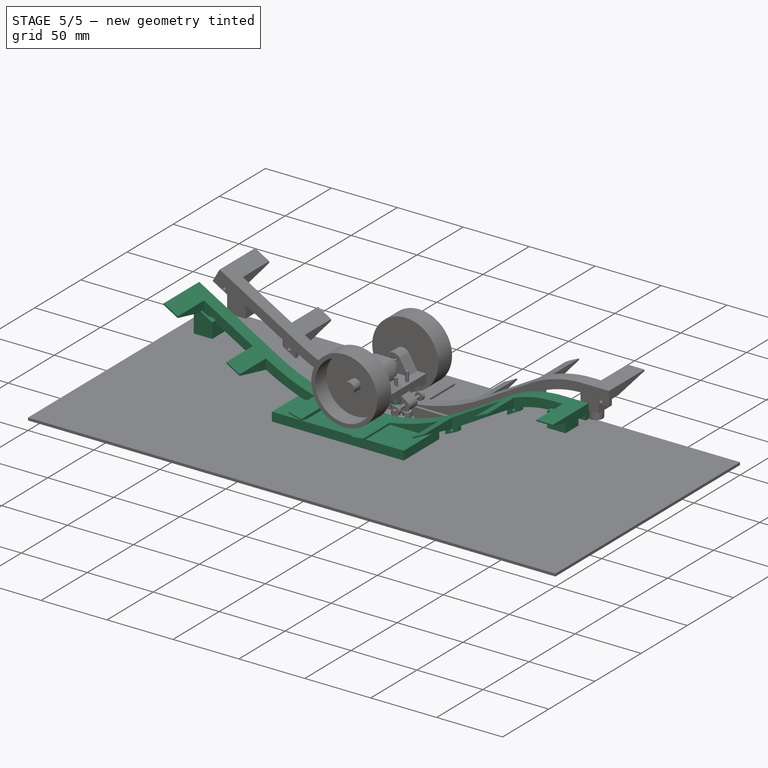
[diagram: stage 5 of 5 — iso view after this stage's code; geometry added in this stage tinted green]
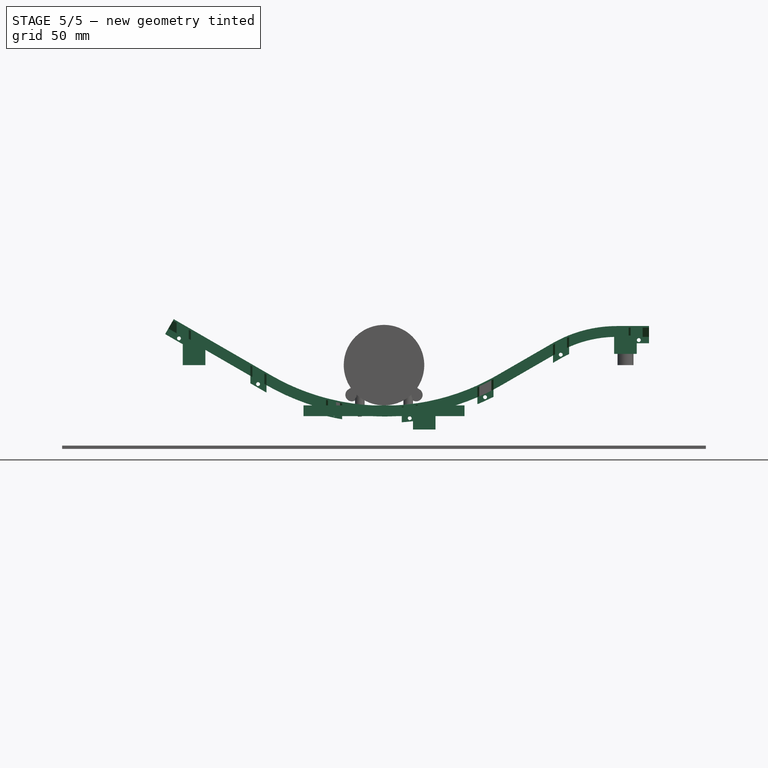
[diagram: stage 5 of 5 — front view after this stage's code; geometry added in this stage tinted green]
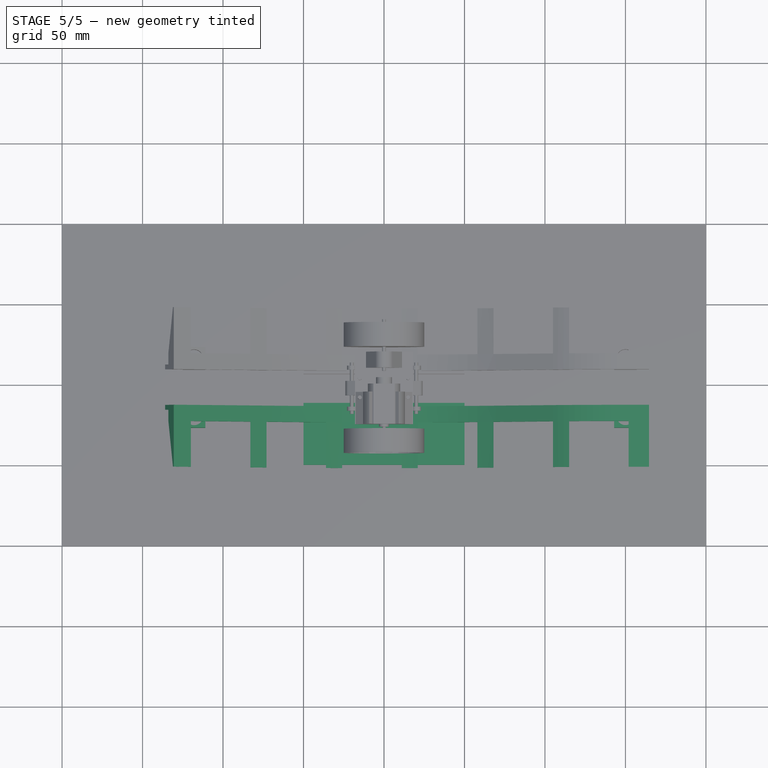
[diagram: stage 5 of 5 — top view after this stage's code; geometry added in this stage tinted green]
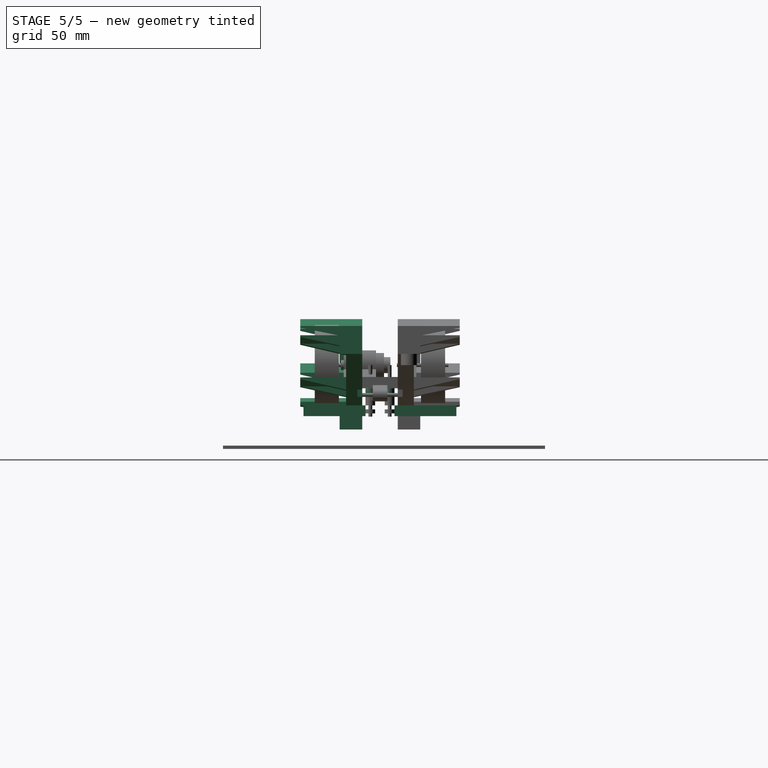
[diagram: stage 5 of 5 — right view after this stage's code; geometry added in this stage tinted green]
FEATURE [Part::Box] Box001  label="flatrail_f"
  Height = 6.7
  Length = 100
  Placement = pos=(-50,-50,-31.7) rot=(0,0,1;0rad)
  Width = 38.5
FEATURE [Part::FeaturePython] Clone  label="flatrail_b"  # Draft clone (typed FeaturePython)
  Objects = -> [Box001]
  Placement = pos=(-50,6.5,-31.7) rot=(0,0,1;0rad)
  Scale = (1,1,1)
FEATURE [Sketcher::SketchObject] Sketch021
  Placement = pos=(-18,-25,-12.4) rot=(1,0,0;3.14159rad)
  Support = -> Box [Face5]
  sketch-geometry (4):
    g0: Circle CenterX=3 CenterY=-16.5 CenterZ=0 NormalX=0 NormalY=0 NormalZ=1 Radius=3
    g1: Circle CenterX=33 CenterY=-28.5 CenterZ=0 NormalX=0 NormalY=0 NormalZ=1 Radius=3
    g2: Circle CenterX=33 CenterY=-16.5 CenterZ=0 NormalX=0 NormalY=0 NormalZ=1 Radius=3
    g3: Circle CenterX=3 CenterY=-28.5 CenterZ=0 NormalX=0 NormalY=0 NormalZ=1 Radius=3
  constraints (12):
    c: DistanceX(g0) = 3
    c: DistanceY(g0) = -16.5
    c: Radius(g0) = 3
    c: DistanceX(g1) = 33
    c: DistanceY(g1) = -28.5
    c: Equal(g0,g3)
    c: Equal(g3,g1)
    c: Equal(g1,g2)
    c: DistanceX(g3) = 3
    c: DistanceY(g3) = -28.5
    c: DistanceX(g2) = 33
    c: DistanceY(g2) = -16.5
FEATURE [PartDesign::Pad] Pad017
  Length = 5
  Length2 = 100
  Placement = pos=(-18,-25,-12.4) rot=(0,0,1;0rad)
  Sketch = -> Sketch021
  Type = 0
FEATURE [Sketcher::SketchObject] Sketch027
  Placement = pos=(20,11.5,-18.5) rot=(-1,0,0;1.5708rad)
  Support = -> Pad016 [Face3]
  sketch-geometry (1):
    g0: Circle CenterX=0 CenterY=0 CenterZ=0 NormalX=0 NormalY=0 NormalZ=1 Radius=3
  constraints (2):
    c: Coincident(g0,g-1)
    c: Radius(g0) = 3
FEATURE [Sketcher::SketchObject] Sketch028  label="rail_path"
  Placement = pos=(0,0,0) rot=(1,0,0;1.5708rad)
  sketch-geometry (5):
    g0: LineSegment StartX=-130.622 StartY=28.5564 StartZ=0 EndX=-70 EndY=-6.44356 EndZ=0
    g1: LineSegment StartX=70 StartY=-6.44356 StartZ=0 EndX=104.641 EndY=13.5564 EndZ=0
    g2: ArcOfCircle CenterX=0 CenterY=114.8 CenterZ=0 NormalX=0 NormalY=0 NormalZ=1 Radius=140 StartAngle=4.18879 EndAngle=5.23599
    g3: ArcOfCircle CenterX=144.641 CenterY=-55.7256 CenterZ=0 NormalX=0 NormalY=0 NormalZ=1 Radius=80 StartAngle=1.5708 EndAngle=2.0944
    g4: LineSegment StartX=144.641 StartY=24.2744 StartZ=0 EndX=164.641 EndY=24.2744 EndZ=0
  constraints (18):
    c: PointOnObject(g2,g-2)
    c: Coincident(g2,g0)
    c: Coincident(g2,g1)
    c: Coincident(g3,g1)
    c: Tangent(g3,g1)
    c: Tangent(g1,g2)
    c: Tangent(g0,g2)
    c: Symmetric(g1,g0,g-2)
    c: Coincident(g4,g3)
    c: Horizontal(g4)
    c: Distance(g0) = 70
    c: Radius(g2) = 140
    c: Distance(g1) = 40
    c: Radius(g3) = 80
    c: Distance(g4) = 20
    c: DistanceY(g2) = 114.8
    c: Angle(g3) = 0.523599
    c: Angle(g2) = 1.0472
FEATURE [Part::Compound] Compound001  label="flatrail"
  Links = -> [Box001,Clone]
FEATURE [Part::Cut] Cut007  label="rail_cut_b"
  Base = -> Sweep
  Tool = -> Array
FEATURE [Part::Box] Box010  label="bigleft"
  Height = 100
  Length = 200
  Placement = pos=(0,-50,-50) rot=(0,0,1;0rad)
  Width = 100
FEATURE [Sketcher::SketchObject] Sketch037  label="rail_bigcut_male_l_sk"
  Placement = pos=(0,0,0) rot=(0.57735,0.57735,0.57735;2.0944rad)
  sketch-geometry (4):
    g0: LineSegment StartX=11.05 StartY=-27 StartZ=0 EndX=16.05 EndY=-27 EndZ=0
    g1: LineSegment StartX=16.05 StartY=-27 StartZ=0 EndX=16.05 EndY=-30.1 EndZ=0
    g2: LineSegment StartX=16.05 StartY=-30.1 StartZ=0 EndX=11.05 EndY=-30.1 EndZ=0
    g3: LineSegment StartX=11.05 StartY=-30.1 StartZ=0 EndX=11.05 EndY=-27 EndZ=0
  constraints (12):
    c: Coincident(g0,g1)
    c: Coincident(g1,g2)
    c: Coincident(g2,g3)
    c: Coincident(g3,g0)
    c: Horizontal(g0)
    c: Horizontal(g2)
    c: Vertical(g1)
    c: Vertical(g3)
    c: DistanceY(g3,g3) = 3.1
    c: DistanceX(g0,g0) = 5
    c: DistanceX(g0) = 11.05
    c: DistanceY(g0) = -27
FEATURE [PartDesign::Pad] Pad022  label="rail_bigcut_male_l"
  Length = 5
  Length2 = 100
  Placement = pos=(0,0,0) rot=(0.57735,0.57735,0.57735;2.0944rad)
  Sketch = -> Sketch037
  Type = 0
FEATURE [Sketcher::SketchObject] Sketch038  label="rail_bigcut_male_l_sk001"
  Placement = pos=(0,0,0) rot=(0.57735,0.57735,0.57735;2.0944rad)
  sketch-geometry (4):
    g0: LineSegment StartX=11.05 StartY=-27 StartZ=0 EndX=16.05 EndY=-27 EndZ=0
    g1: LineSegment StartX=16.05 StartY=-27 StartZ=0 EndX=16.05 EndY=-30.1 EndZ=0
    g2: LineSegment StartX=16.05 StartY=-30.1 StartZ=0 EndX=11.05 EndY=-30.1 EndZ=0
    g3: LineSegment StartX=11.05 StartY=-30.1 StartZ=0 EndX=11.05 EndY=-27 EndZ=0
  constraints (12):
    c: Coincident(g0,g1)
    c: Coincident(g1,g2)
    c: Coincident(g2,g3)
    c: Coincident(g3,g0)
    c: Horizontal(g0)
    c: Horizontal(g2)
    c: Vertical(g1)
    c: Vertical(g3)
    c: DistanceY(g3,g3) = 3.1
    c: DistanceX(g0,g0) = 5
    c: DistanceX(g0) = 11.05
    c: DistanceY(g0) = -27
FEATURE [Part::Extrusion] Extrude001
  Base = -> Sketch038
  Dir = (7,0,0)
  Solid = true
FEATURE [Part::MultiFuse] Fusion003
  Shapes = -> [Cut010,Cut011,Cut013,Cut007,Pocket009,Pocket008]
FEATURE [Part::Cut] Cut014
  Base = -> Fusion003
  Tool = -> Box010
FEATURE [Part::MultiFuse] Fusion004  label="rail_bl"
  Shapes = -> [Pad022,Cut014]
FEATURE [Part::MultiCommon] Common
  Shapes = -> [Fusion003,Box010]
FEATURE [Part::Cut] Cut015  label="rail_br"
  Base = -> Common
  Tool = -> Extrude001
FEATURE [Part::FeaturePython] Clone019  label="Clone of Fusion004"  # Draft clone (typed FeaturePython)
  Objects = -> [Fusion004]
  Scale = (1,1,1)
FEATURE [Part::FeaturePython] Clone020  label="Clone of Cut015"  # Draft clone (typed FeaturePython)
  Objects = -> [Cut015]
  Scale = (1,1,1)
FEATURE [Part::Mirroring] Part__Mirroring  label="rail_fl"
  Base = (0,0,0)
  Normal = (0,1,0)
  Placement = pos=(0,-5,0) rot=(0,0,1;0rad)
  Source = -> Clone019
FEATURE [Part::Mirroring] Part__Mirroring001  label="rail_fr"
  Base = (82.3205,-4.76837e-07,-4.5671)
  Normal = (0,1,-1.19209e-07)
  Placement = pos=(0,-5,0) rot=(0,0,1;0rad)
  Source = -> Clone020
FEATURE [Part::Compound] Compound002  label="rail"
  Links = -> [Fusion004,Part__Mirroring001,Part__Mirroring,Cut015]
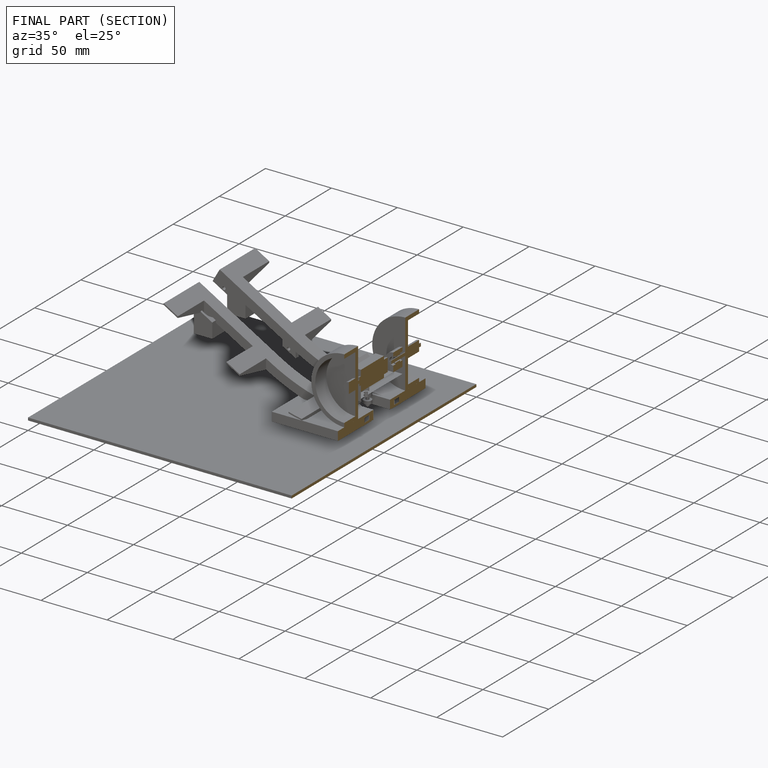
[diagram: finished part — half-section view (interior)]
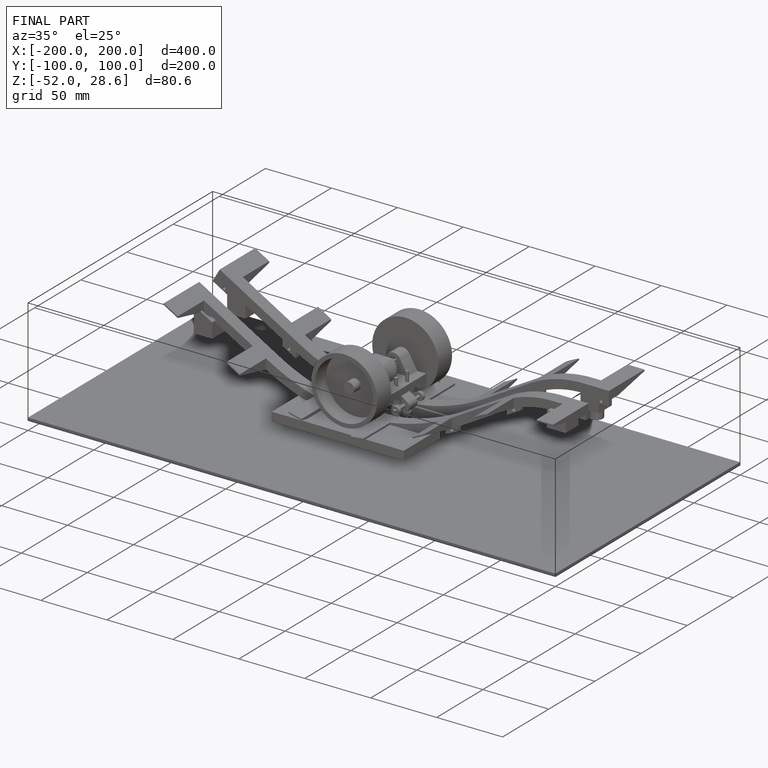
[diagram: finished part — iso view with bounding-box wireframe]
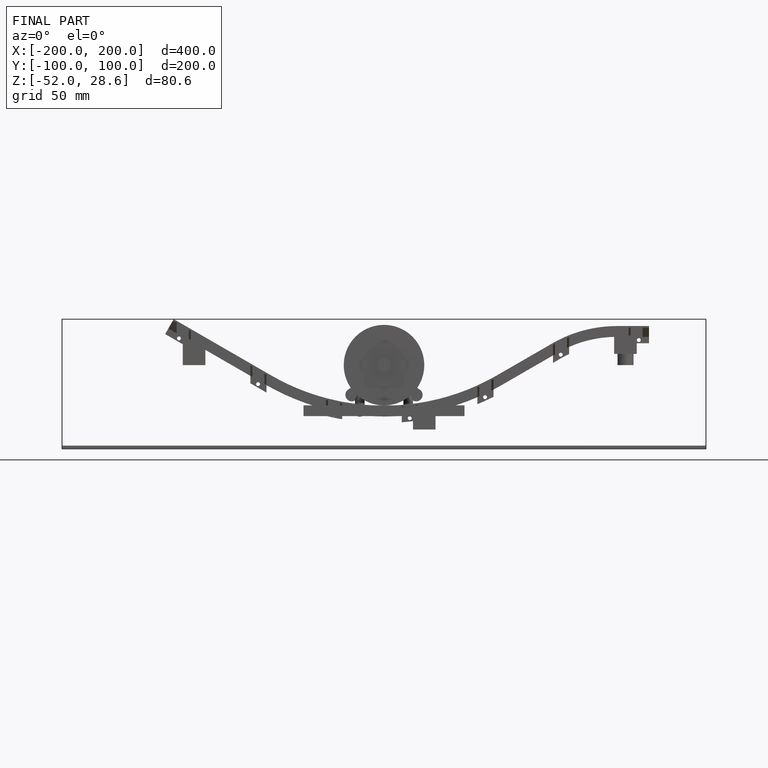
[diagram: finished part — front view with bounding-box wireframe]
